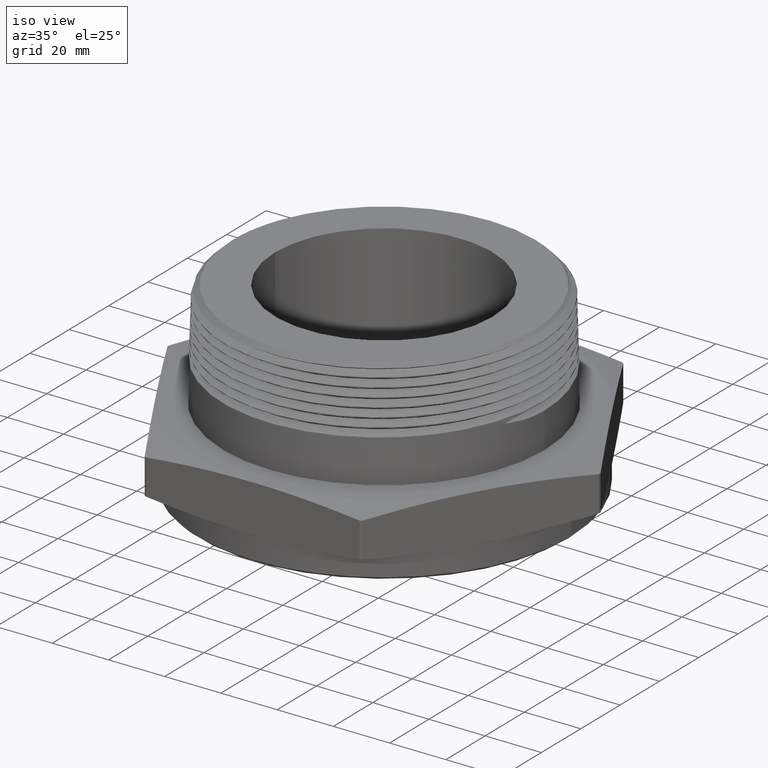
[diagram: clean part render]
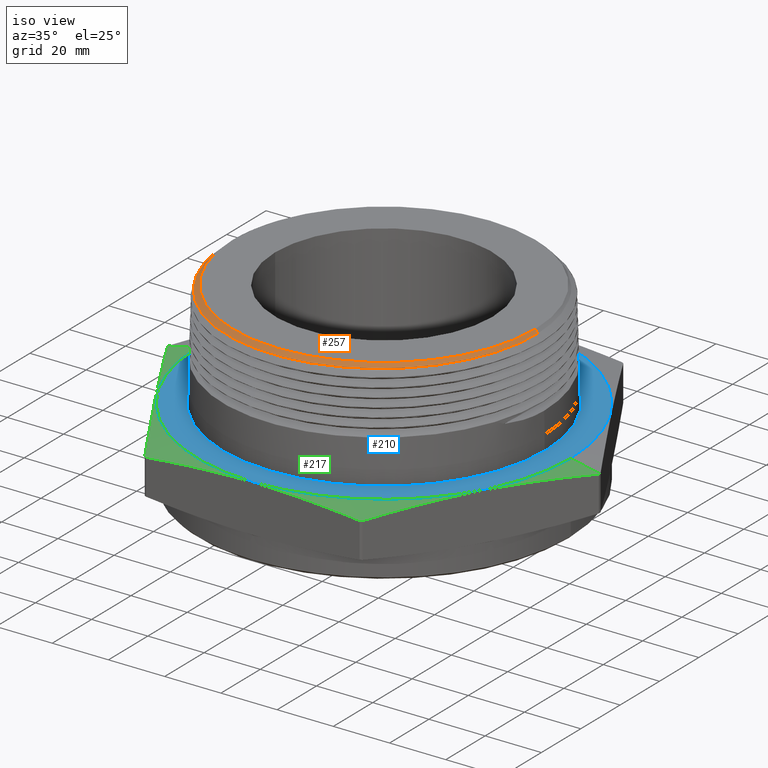
[diagram: same view with three faces highlighted in distinct colors, each labeled with its STEP entity id]
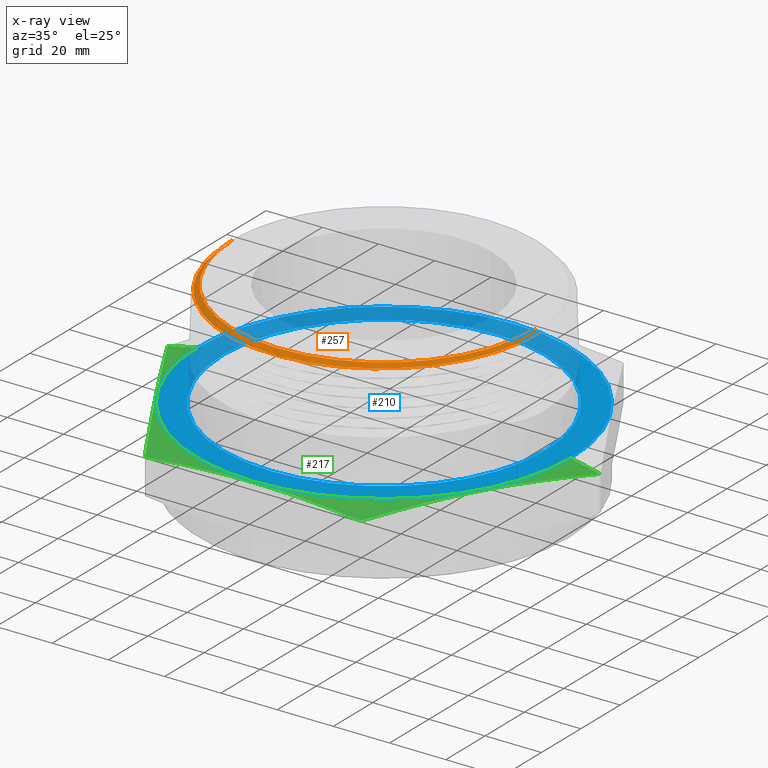
[diagram: x-ray of the same camera — body ghosted, the three highlighted faces saturated]
A machine part, iso view with three faces highlighted in distinct colors.
The next image is the same camera in x-ray (body ghosted, the three faces saturated) — at least one of them is partly hidden behind the body in this view.
Their STEP definitions:

[orange] entity #257 — the highlighted conical surface has half-angle 45 deg.
#121 = FACE_OUTER_BOUND ( 'NONE', #6496, .T. ) ;
#127 = CONICAL_SURFACE ( 'NONE', #6254, 2.365952142250428800, 0.7853981633974532800 ) ;
#257 = ADVANCED_FACE ( 'NONE', ( #121 ), #127, .T. ) ;
#384 = CARTESIAN_POINT ( 'NONE',  ( 2.158410005699266800, -0.07103399825055706200, 2.128779994300698400 ) ) ;
#385 = CARTESIAN_POINT ( 'NONE',  ( 2.157988691224699700, -1.083345630056351400E-012, 2.129201308775299700 ) ) ;
#452 = CARTESIAN_POINT ( 'NONE',  ( -2.123770115113994700, -0.1147659623215417400, 2.163419884886004700 ) ) ;
#453 = CARTESIAN_POINT ( 'NONE',  ( -2.365952142250428800, 0.0000000000000000000, 1.921237857749573000 ) ) ;
#454 = CARTESIAN_POINT ( 'NONE',  ( -2.090551265721161100, -0.3442657029160020000, 2.168482028426059700 ) ) ;
#455 = CARTESIAN_POINT ( 'NONE',  ( 2.155331088833250400, -0.1422931225138161200, 2.128360698266322800 ) ) ;
#456 = CARTESIAN_POINT ( 'NONE',  ( 2.145302996054730300, -0.2495296726293667100, 2.127722210912041500 ) ) ;
#457 = CARTESIAN_POINT ( 'NONE',  ( 2.141059379698197600, -0.2852498387821115200, 2.127508468492275800 ) ) ;
#458 = CARTESIAN_POINT ( 'NONE',  ( 2.130864202773298500, -0.3560306328158861500, 2.127083141119943100 ) ) ;
#459 = CARTESIAN_POINT ( 'NONE',  ( 2.124904984253900500, -0.3911802875291775000, 2.126871036496598600 ) ) ;
#460 = CARTESIAN_POINT ( 'NONE',  ( 2.090863008216183000, -0.5657422755863469300, 2.125817872083261700 ) ) ;
#461 = CARTESIAN_POINT ( 'NONE',  ( 2.050182573831986300, -0.7016347534248080800, 2.124981313803183000 ) ) ;
#462 = CARTESIAN_POINT ( 'NONE',  ( 1.982352449784978900, -0.8667560695433042000, 2.123925632233866000 ) ) ;
#463 = CARTESIAN_POINT ( 'NONE',  ( 1.967928932342085900, -0.8995407448648865500, 2.123714791984807200 ) ) ;
#464 = CARTESIAN_POINT ( 'NONE',  ( 1.937332665192826700, -0.9646213335205686700, 2.123290900230931000 ) ) ;
#465 = CARTESIAN_POINT ( 'NONE',  ( 1.921275626372229900, -0.9966693577098307800, 2.123079453047134200 ) ) ;
#466 = CARTESIAN_POINT ( 'NONE',  ( 1.870936057429065400, -1.091246122713398500, 2.122445602918251700 ) ) ;
#467 = CARTESIAN_POINT ( 'NONE',  ( 1.834465169501656700, -1.152266467034364500, 2.122022633242043500 ) ) ;
#468 = CARTESIAN_POINT ( 'NONE',  ( 1.755814375672600600, -1.270324616974911800, 2.121184918930704800 ) ) ;
#469 = CARTESIAN_POINT ( 'NONE',  ( 1.713635130469317400, -1.327362876043925100, 2.120769145365003700 ) ) ;
#470 = CARTESIAN_POINT ( 'NONE',  ( 1.646059768117905000, -1.409916014414202200, 2.120138693155186400 ) ) ;
#471 = CARTESIAN_POINT ( 'NONE',  ( 1.622815462701444600, -1.436932018760046700, 2.119927598019315500 ) ) ;
#472 = CARTESIAN_POINT ( 'NONE',  ( 1.574866285158989600, -1.489945128534545100, 2.119503913710599100 ) ) ;
#473 = CARTESIAN_POINT ( 'NONE',  ( 1.550110700218499700, -1.515992517149452600, 2.119290935042864800 ) ) ;
#474 = CARTESIAN_POINT ( 'NONE',  ( 1.423175544001725700, -1.643043949773524100, 2.118231765352802700 ) ) ;
#475 = CARTESIAN_POINT ( 'NONE',  ( 1.313246604068322600, -1.733069224013571900, 2.117395822058739000 ) ) ;
#476 = CARTESIAN_POINT ( 'NONE',  ( 1.136248725666382200, -1.851330086078559100, 2.116141968915687100 ) ) ;
#477 = CARTESIAN_POINT ( 'NONE',  ( 1.075216023926326600, -1.887932043361875800, 2.115725778294430100 ) ) ;
#478 = CARTESIAN_POINT ( 'NONE',  ( 0.9805456914266392800, -1.938508731901822200, 2.115092868526207100 ) ) ;
#479 = CARTESIAN_POINT ( 'NONE',  ( 0.9483757626806761400, -1.954686865022142300, 2.114880047649220000 ) ) ;
#480 = CARTESIAN_POINT ( 'NONE',  ( 0.8834985514088584700, -1.985318894920357100, 2.114455776395709000 ) ) ;
#481 = CARTESIAN_POINT ( 'NONE',  ( 0.8508045123698035900, -1.999773626894547400, 2.114244452451228300 ) ) ;
#482 = CARTESIAN_POINT ( 'NONE',  ( 0.6860800666902657800, -2.067818230949733000, 2.113196048195703700 ) ) ;
#483 = CARTESIAN_POINT ( 'NONE',  ( 0.5503285710658181200, -2.108860995126051300, 2.112363284461472800 ) ) ;
#484 = CARTESIAN_POINT ( 'NONE',  ( 0.3756938088492684500, -2.143488896235536100, 2.111317146545436800 ) ) ;
#485 = CARTESIAN_POINT ( 'NONE',  ( 0.3405171883566446800, -2.149572623581209800, 2.111108240777998200 ) ) ;
#486 = CARTESIAN_POINT ( 'NONE',  ( 0.2696566243259607100, -2.160029386419501500, 2.110688438217587200 ) ) ;
#487 = CARTESIAN_POINT ( 'NONE',  ( 0.2338872099814332300, -2.164407547262179300, 2.110477033038469200 ) ) ;
#488 = CARTESIAN_POINT ( 'NONE',  ( 0.1268960001137817200, -2.174825556757361800, 2.109844568340107700 ) ) ;
#489 = CARTESIAN_POINT ( 'NONE',  ( 0.05574086578404421900, -2.178210383764793700, 2.109423145974485900 ) ) ;
#490 = CARTESIAN_POINT ( 'NONE',  ( -0.1572214551619965100, -2.177969531087013500, 2.108173325892419100 ) ) ;
#491 = CARTESIAN_POINT ( 'NONE',  ( -0.2985311274584993600, -2.164065736030630100, 2.107341443190347400 ) ) ;
#492 = CARTESIAN_POINT ( 'NONE',  ( -0.4743120296745360100, -2.128998665574605400, 2.106290617020289100 ) ) ;
#493 = CARTESIAN_POINT ( 'NONE',  ( -0.5094588886384703300, -2.121078195368110800, 2.106080272960653600 ) ) ;
#494 = CARTESIAN_POINT ( 'NONE',  ( -0.5788937782174001800, -2.103622934178169600, 2.105661630492499500 ) ) ;
#495 = CARTESIAN_POINT ( 'NONE',  ( -0.6132773621054270500, -2.094071470364546400, 2.105452765304939100 ) ) ;
#496 = CARTESIAN_POINT ( 'NONE',  ( -0.7154438932827360500, -2.062988447108906200, 2.104825924302070800 ) ) ;
#497 = CARTESIAN_POINT ( 'NONE',  ( -0.7822451641129771800, -2.039034543540335900, 2.104407058110546300 ) ) ;
#498 = CARTESIAN_POINT ( 'NONE',  ( -0.9132560371715443500, -1.984731492225040500, 2.103576551943132000 ) ) ;
#499 = CARTESIAN_POINT ( 'NONE',  ( -0.9774661451556936300, -1.954383613032506700, 2.103163600699642800 ) ) ;
#500 = CARTESIAN_POINT ( 'NONE',  ( -1.071809841124561800, -1.903997177546805900, 2.102536578311791100 ) ) ;
#501 = CARTESIAN_POINT ( 'NONE',  ( -1.102928515121977000, -1.886389330262417500, 2.102326486163432300 ) ) ;
#502 = CARTESIAN_POINT ( 'NONE',  ( -1.164494439956732300, -1.849516877823186700, 2.101904540079446700 ) ) ;
#503 = CARTESIAN_POINT ( 'NONE',  ( -1.194907176029258400, -1.830265966896049700, 2.101692942769072000 ) ) ;
#504 = CARTESIAN_POINT ( 'NONE',  ( -1.343620809245273300, -1.730931213549554000, 2.100646783584797700 ) ) ;
#505 = CARTESIAN_POINT ( 'NONE',  ( -1.453319022376300800, -1.640927808825173800, 2.099818756625690100 ) ) ;
#506 = CARTESIAN_POINT ( 'NONE',  ( -1.604253836159803500, -1.490456367805222700, 2.098573146687009700 ) ) ;
#507 = CARTESIAN_POINT ( 'NONE',  ( -1.652279322084109900, -1.437701747475326900, 2.098159377525259400 ) ) ;
#508 = CARTESIAN_POINT ( 'NONE',  ( -1.720781882988033300, -1.354552716942155600, 2.097529341334330800 ) ) ;
#509 = CARTESIAN_POINT ( 'NONE',  ( -1.742944440946772900, -1.326257388882511500, 2.097318659415026600 ) ) ;
#510 = CARTESIAN_POINT ( 'NONE',  ( -1.785635517901552800, -1.268919463282668600, 2.096899309335440900 ) ) ;
#511 = CARTESIAN_POINT ( 'NONE',  ( -1.806212732860441600, -1.239818333782116300, 2.096690216174814200 ) ) ;
#512 = CARTESIAN_POINT ( 'NONE',  ( -1.905311167430492800, -1.092182183880566100, 2.095652087833915500 ) ) ;
#513 = CARTESIAN_POINT ( 'NONE',  ( -1.972591908792584500, -0.9673246490074237600, 2.094826958682002500 ) ) ;
#514 = CARTESIAN_POINT ( 'NONE',  ( -2.041546964681548300, -0.8027336214231535200, 2.093785906115009300 ) ) ;
#515 = CARTESIAN_POINT ( 'NONE',  ( -2.054573244862035500, -0.7693852715015032700, 2.093578040989361200 ) ) ;
#516 = CARTESIAN_POINT ( 'NONE',  ( -2.079066734540005300, -0.7018116472949995600, 2.093160240138503000 ) ) ;
#517 = CARTESIAN_POINT ( 'NONE',  ( -2.090464944188297600, -0.6677712421181549700, 2.092951443415284300 ) ) ;
#518 = CARTESIAN_POINT ( 'NONE',  ( -2.122044436649070100, -0.5652209093128913700, 2.092325498139157700 ) ) ;
#519 = CARTESIAN_POINT ( 'NONE',  ( -2.139667390322186800, -0.4961460276175085300, 2.091907212245251600 ) ) ;
#520 = CARTESIAN_POINT ( 'NONE',  ( -2.168137603453309300, -0.3565976459293263600, 2.091077151152277700 ) ) ;
#521 = CARTESIAN_POINT ( 'NONE',  ( -2.178985078286467000, -0.2861241916846868300, 2.090665159543330500 ) ) ;
#522 = CARTESIAN_POINT ( 'NONE',  ( -2.193818548536882900, -0.1437610559410860700, 2.089831263837269100 ) ) ;
#523 = CARTESIAN_POINT ( 'NONE',  ( -2.197781326248941200, -0.07176012101515082100, 2.089408673751059100 ) ) ;
#524 = CARTESIAN_POINT ( 'NONE',  ( -2.198199161816874400, -8.110173731190781100E-016, 2.088990838183126400 ) ) ;
#525 = DIRECTION ( 'NONE',  ( -0.7071067811865510100, 0.0000000000000000000, -0.7071067811865440200 ) ) ;
#526 = CARTESIAN_POINT ( 'NONE',  ( -2.126273115848336100, -2.561107494060246600E-016, 2.160916884151663300 ) ) ;
#527 = CARTESIAN_POINT ( 'NONE',  ( -2.109309430332243700, -0.2304863166956607200, 2.168460994660383000 ) ) ;
#528 = DIRECTION ( 'NONE',  ( -0.7071067811865510100, 0.0000000000000000000, -0.7071067811865440200 ) ) ;
#529 = CARTESIAN_POINT ( 'NONE',  ( -2.112045325650973500, -0.2295219104296485300, 2.165918163142028300 ) ) ;
#530 = CARTESIAN_POINT ( 'NONE',  ( -2.090551265721161100, -0.3442657029160020000, 2.168482028426059700 ) ) ;
#531 = CARTESIAN_POINT ( 'NONE',  ( -2.118766093896505200, -0.1152894655081384100, 2.168423906103494700 ) ) ;
#532 = CARTESIAN_POINT ( 'NONE',  ( -2.118793873181037000, -2.561107494060246600E-016, 2.168396126818962000 ) ) ;
#535 = CARTESIAN_POINT ( 'NONE',  ( -2.365952142250428800, 0.0000000000000000000, 1.921237857749573000 ) ) ;
#536 = CARTESIAN_POINT ( 'NONE',  ( 0.0000000000000000000, 0.0000000000000000000, 2.169999999999999900 ) ) ;
#537 = DIRECTION ( 'NONE',  ( -0.0000000000000000000, -0.0000000000000000000, 1.000000000000000000 ) ) ;
#538 = DIRECTION ( 'NONE',  ( 1.000000000000000000, 0.0000000000000000000, 0.0000000000000000000 ) ) ;
#546 = CARTESIAN_POINT ( 'NONE',  ( 2.365952142250428800, 2.897455717942810700E-016, 1.921237857749573000 ) ) ;
#547 = DIRECTION ( 'NONE',  ( 0.7071067811865510100, 8.659560562354976000E-017, -0.7071067811865440200 ) ) ;
#1810 = DIRECTION ( 'NONE',  ( -1.000000000000000000, 0.0000000000000000000, 0.0000000000000000000 ) ) ;
#1811 = CARTESIAN_POINT ( 'NONE',  ( 0.0000000000000000000, 0.0000000000000000000, 1.921237857749573000 ) ) ;
#1812 = DIRECTION ( 'NONE',  ( 0.0000000000000000000, 0.0000000000000000000, -1.000000000000000000 ) ) ;
#1881 = CARTESIAN_POINT ( 'NONE',  ( -2.126273115848336100, -2.561107494060246600E-016, 2.160916884151663300 ) ) ;
#1884 = CARTESIAN_POINT ( 'NONE',  ( -2.117189999999999500, 0.0000000000000000000, 2.169999999999999900 ) ) ;
#1885 = CARTESIAN_POINT ( 'NONE',  ( 2.117189999999999500, 2.642711384879268900E-016, 2.169999999999999900 ) ) ;
#1886 = CARTESIAN_POINT ( 'NONE',  ( 2.157988691224699700, -1.083345630056351400E-012, 2.129201308775299700 ) ) ;
#1895 = CARTESIAN_POINT ( 'NONE',  ( -2.090551265721161100, -0.3442657029160020000, 2.168482028426059700 ) ) ;
#1896 = CARTESIAN_POINT ( 'NONE',  ( -2.198199161816874400, -8.110173731190781100E-016, 2.088990838183126400 ) ) ;
#1911 = CARTESIAN_POINT ( 'NONE',  ( -2.118793873181037000, -2.561107494060246600E-016, 2.168396126818962000 ) ) ;
#3581 = B_SPLINE_CURVE_WITH_KNOTS ( 'NONE', 3,
 ( #385, #384, #455, #456, #457, #458, #459, #460, #461, #462, #463, #464, #465, #466, #467, #468, #469, #470, #471, #472, #473, #474, #475, #476, #477, #478, #479, #480, #481, #482, #483, #484, #485, #486, #487, #488, #489, #490, #491, #492, #493, #494, #495, #496, #497, #498, #499, #500, #501, #502, #503, #504, #505, #506, #507, #508, #509, #510, #511, #512, #513, #514, #515, #516, #517, #518, #519, #520, #521, #522, #523, #524 ),
 .UNSPECIFIED., .F., .F.,
 ( 4, 2, 2, 2, 2, 2, 2, 2, 2, 2, 2, 2, 2, 2, 2, 2, 2, 2, 2, 2, 2, 2, 2, 2, 2, 2, 2, 2, 2, 2, 2, 2, 2, 2, 2, 4 ),
 ( 0.1673629928502143000, 0.1728369310331981700, 0.1755739001246901000, 0.1783108692161820300, 0.1892587455821497500, 0.1919957146736416800, 0.1947326837651335900, 0.2002066219481174500, 0.2056805601311013100, 0.2084175292225932400, 0.2111544983140851700, 0.2221023746800529200, 0.2275763128630368100, 0.2303132819545287700, 0.2330502510460206700, 0.2439981274119884800, 0.2467350965034804100, 0.2494720655949723400, 0.2549460037779562300, 0.2658938801439240100, 0.2686308492354159700, 0.2713678183269079300, 0.2768417565098917900, 0.2823156946928756500, 0.2850526637843675500, 0.2877896328758595100, 0.2987375092418271800, 0.3042114474248111000, 0.3069484165163030000, 0.3096853856077949100, 0.3206332619737626300, 0.3233702310652545300, 0.3261072001567464400, 0.3315811383397303000, 0.3370550765227141600, 0.3425290147056979700 ),
 .UNSPECIFIED. ) ;
#3582 = B_SPLINE_CURVE_WITH_KNOTS ( 'NONE', 3,
 ( #526, #452, #529, #530 ),
 .UNSPECIFIED., .F., .F.,
 ( 4, 4 ),
 ( 0.1116461931724698900, 0.1205278137887863700 ),
 .UNSPECIFIED. ) ;
#3583 = B_SPLINE_CURVE_WITH_KNOTS ( 'NONE', 3,
 ( #454, #527, #531, #532 ),
 .UNSPECIFIED., .F., .F.,
 ( 4, 4 ),
 ( 0.0000000000000000000, 0.008787003462913988200 ),
 .UNSPECIFIED. ) ;
#6254 = AXIS2_PLACEMENT_3D ( 'NONE', #1811, #1812, #1810 ) ;
#6300 = AXIS2_PLACEMENT_3D ( 'NONE', #536, #537, #538 ) ;
#6349 = VERTEX_POINT ( 'NONE', #1881 ) ;
#6352 = VERTEX_POINT ( 'NONE', #1884 ) ;
#6353 = VERTEX_POINT ( 'NONE', #1885 ) ;
#6354 = VERTEX_POINT ( 'NONE', #1886 ) ;
#6363 = VERTEX_POINT ( 'NONE', #1895 ) ;
#6364 = VERTEX_POINT ( 'NONE', #1896 ) ;
#6379 = VERTEX_POINT ( 'NONE', #1911 ) ;
#6422 = ORIENTED_EDGE ( 'NONE', *, *, #7466, .F. ) ;
#6423 = ORIENTED_EDGE ( 'NONE', *, *, #7459, .F. ) ;
#6424 = ORIENTED_EDGE ( 'NONE', *, *, #7460, .T. ) ;
#6425 = ORIENTED_EDGE ( 'NONE', *, *, #7458, .F. ) ;
#6426 = ORIENTED_EDGE ( 'NONE', *, *, #7457, .F. ) ;
#6427 = ORIENTED_EDGE ( 'NONE', *, *, #7456, .T. ) ;
#6428 = ORIENTED_EDGE ( 'NONE', *, *, #7455, .F. ) ;
#6496 = EDGE_LOOP ( 'NONE', ( #6422, #6423, #6424, #6425, #6426, #6427, #6428 ) ) ;
#7302 = LINE ( 'NONE', #535, #7312 ) ;
#7306 = LINE ( 'NONE', #453, #7309 ) ;
#7309 = VECTOR ( 'NONE', #525, 39.37007874015748100 ) ;
#7310 = CIRCLE ( 'NONE', #6300, 2.117189999999999500 ) ;
#7312 = VECTOR ( 'NONE', #528, 39.37007874015748100 ) ;
#7317 = LINE ( 'NONE', #546, #7319 ) ;
#7319 = VECTOR ( 'NONE', #547, 39.37007874015748100 ) ;
#7455 = EDGE_CURVE ( 'NONE', #6354, #6364, #3581, .T. ) ;
#7456 = EDGE_CURVE ( 'NONE', #6349, #6364, #7306, .T. ) ;
#7457 = EDGE_CURVE ( 'NONE', #6349, #6363, #3582, .T. ) ;
#7458 = EDGE_CURVE ( 'NONE', #6363, #6379, #3583, .T. ) ;
#7459 = EDGE_CURVE ( 'NONE', #6352, #6353, #7310, .T. ) ;
#7460 = EDGE_CURVE ( 'NONE', #6352, #6379, #7302, .T. ) ;
#7466 = EDGE_CURVE ( 'NONE', #6353, #6354, #7317, .T. ) ;

[blue] entity #210 — the highlighted planar face has unit normal (-0, 0, 1).
#10 = CIRCLE ( 'NONE', #6281, 2.615000000000000200 ) ;
#46 = CIRCLE ( 'NONE', #6293, 2.260000000000000200 ) ;
#74 = ORIENTED_EDGE ( 'NONE', *, *, #7418, .F. ) ;
#75 = ORIENTED_EDGE ( 'NONE', *, *, #7514, .F. ) ;
#76 = ORIENTED_EDGE ( 'NONE', *, *, #7437, .T. ) ;
#77 = ORIENTED_EDGE ( 'NONE', *, *, #7515, .T. ) ;
#185 = FACE_BOUND ( 'NONE', #6522, .T. ) ;
#186 = FACE_OUTER_BOUND ( 'NONE', #6518, .T. ) ;
#210 = ADVANCED_FACE ( 'NONE', ( #186, #185 ), #3507, .T. ) ;
#1471 = CARTESIAN_POINT ( 'NONE',  ( 8.205133554287250800E-017, 0.0000000000000000000, 0.6699999999999998200 ) ) ;
#1472 = DIRECTION ( 'NONE',  ( -1.224646799147351200E-016, -0.0000000000000000000, -1.000000000000000000 ) ) ;
#1473 = DIRECTION ( 'NONE',  ( -1.000000000000000000, 0.0000000000000000000, 1.044683745187098700E-016 ) ) ;
#1543 = CARTESIAN_POINT ( 'NONE',  ( 0.0000000000000000000, 0.0000000000000000000, 0.6700000000000000400 ) ) ;
#1544 = DIRECTION ( 'NONE',  ( 0.0000000000000000000, -0.0000000000000000000, -1.000000000000000000 ) ) ;
#1545 = DIRECTION ( 'NONE',  ( 1.000000000000000000, 0.0000000000000000000, 0.0000000000000000000 ) ) ;
#1878 = CARTESIAN_POINT ( 'NONE',  ( -2.615000000000000200, 0.0000000000000000000, 0.6700000000000000400 ) ) ;
#1891 = CARTESIAN_POINT ( 'NONE',  ( 2.615000000000000200, 3.202451379770328800E-016, 0.6699999999999996000 ) ) ;
#1897 = CARTESIAN_POINT ( 'NONE',  ( -2.260000000000000200, 2.767701766073018000E-016, 0.6700000000000000400 ) ) ;
#1905 = CARTESIAN_POINT ( 'NONE',  ( 2.260000000000000200, 0.0000000000000000000, 0.6700000000000000400 ) ) ;
#2442 = CARTESIAN_POINT ( 'NONE',  ( 8.205133554287250800E-017, 0.0000000000000000000, 0.6699999999999998200 ) ) ;
#2443 = DIRECTION ( 'NONE',  ( -1.224646799147351200E-016, -0.0000000000000000000, -1.000000000000000000 ) ) ;
#2444 = DIRECTION ( 'NONE',  ( -1.000000000000000000, 0.0000000000000000000, 1.044683745187098700E-016 ) ) ;
#2447 = CARTESIAN_POINT ( 'NONE',  ( 0.0000000000000000000, 0.0000000000000000000, 0.6700000000000000400 ) ) ;
#2448 = DIRECTION ( 'NONE',  ( 0.0000000000000000000, -0.0000000000000000000, -1.000000000000000000 ) ) ;
#2449 = DIRECTION ( 'NONE',  ( 1.000000000000000000, 0.0000000000000000000, 0.0000000000000000000 ) ) ;
#3507 = PLANE ( 'NONE',  #7557 ) ;
#3509 = CARTESIAN_POINT ( 'NONE',  ( -1.515544456622766500, -2.625000000000000000, 0.6700000000000000400 ) ) ;
#3511 = DIRECTION ( 'NONE',  ( -0.0000000000000000000, 0.0000000000000000000, 1.000000000000000000 ) ) ;
#3512 = DIRECTION ( 'NONE',  ( 1.000000000000000000, 0.0000000000000000000, 0.0000000000000000000 ) ) ;
#6281 = AXIS2_PLACEMENT_3D ( 'NONE', #1471, #1472, #1473 ) ;
#6293 = AXIS2_PLACEMENT_3D ( 'NONE', #1543, #1544, #1545 ) ;
#6308 = AXIS2_PLACEMENT_3D ( 'NONE', #2442, #2443, #2444 ) ;
#6309 = AXIS2_PLACEMENT_3D ( 'NONE', #2447, #2448, #2449 ) ;
#6346 = VERTEX_POINT ( 'NONE', #1878 ) ;
#6359 = VERTEX_POINT ( 'NONE', #1891 ) ;
#6365 = VERTEX_POINT ( 'NONE', #1897 ) ;
#6373 = VERTEX_POINT ( 'NONE', #1905 ) ;
#6518 = EDGE_LOOP ( 'NONE', ( #74, #75 ) ) ;
#6522 = EDGE_LOOP ( 'NONE', ( #76, #77 ) ) ;
#7351 = CIRCLE ( 'NONE', #6308, 2.615000000000000200 ) ;
#7352 = CIRCLE ( 'NONE', #6309, 2.260000000000000200 ) ;
#7418 = EDGE_CURVE ( 'NONE', #6346, #6359, #10, .T. ) ;
#7437 = EDGE_CURVE ( 'NONE', #6373, #6365, #46, .T. ) ;
#7514 = EDGE_CURVE ( 'NONE', #6359, #6346, #7351, .T. ) ;
#7515 = EDGE_CURVE ( 'NONE', #6365, #6373, #7352, .T. ) ;
#7557 = AXIS2_PLACEMENT_3D ( 'NONE', #3509, #3511, #3512 ) ;

[green] entity #217 — the highlighted conical surface has half-angle 78 deg.
#9 = LINE ( 'NONE', #1466, #25 ) ;
#25 = VECTOR ( 'NONE', #1454, 39.37007874015748100 ) ;
#139 = VERTEX_POINT ( 'NONE', #3213 ) ;
#153 = VERTEX_POINT ( 'NONE', #3499 ) ;
#155 = VERTEX_POINT ( 'NONE', #3501 ) ;
#199 = FACE_OUTER_BOUND ( 'NONE', #6529, .T. ) ;
#206 = CONICAL_SURFACE ( 'NONE', #7556, 2.615000000000000200, 1.361356816555583600 ) ;
#217 = ADVANCED_FACE ( 'NONE', ( #199 ), #206, .T. ) ;
#543 = CARTESIAN_POINT ( 'NONE',  ( 7.148056852819461200E-017, 0.0000000000000000000, 0.5836831368682160500 ) ) ;
#544 = DIRECTION ( 'NONE',  ( -1.224646799147351200E-016, -0.0000000000000000000, -1.000000000000000000 ) ) ;
#545 = DIRECTION ( 'NONE',  ( -1.000000000000000000, 0.0000000000000000000, 1.130324227502401800E-016 ) ) ;
#665 = CARTESIAN_POINT ( 'NONE',  ( -2.615000000000000200, 0.0000000000000000000, 0.6700000000000000400 ) ) ;
#686 = DIRECTION ( 'NONE',  ( -0.9781476007338069100, 0.0000000000000000000, -0.2079116908177528500 ) ) ;
#1454 = DIRECTION ( 'NONE',  ( 0.9781476007338069100, 1.197885328332319900E-016, -0.2079116908177530700 ) ) ;
#1466 = CARTESIAN_POINT ( 'NONE',  ( 2.615000000000000200, 3.202451379770328800E-016, 0.6699999999999996000 ) ) ;
#1878 = CARTESIAN_POINT ( 'NONE',  ( -2.615000000000000200, 0.0000000000000000000, 0.6700000000000000400 ) ) ;
#1891 = CARTESIAN_POINT ( 'NONE',  ( 2.615000000000000200, 3.202451379770328800E-016, 0.6699999999999996000 ) ) ;
#1908 = CARTESIAN_POINT ( 'NONE',  ( -3.021038762603234700, -0.01740737153618787700, 0.5836831368682163800 ) ) ;
#1912 = CARTESIAN_POINT ( 'NONE',  ( 3.021088913245534100, 3.699766867545698800E-016, 0.5836831368682157100 ) ) ;
#1914 = CARTESIAN_POINT ( 'NONE',  ( -3.021088913245534100, 0.0000000000000000000, 0.5836831368682163800 ) ) ;
#1925 = CARTESIAN_POINT ( 'NONE',  ( -1.525594607265068100, -2.607592628463814200, 0.5836831368682162700 ) ) ;
#1927 = CARTESIAN_POINT ( 'NONE',  ( 3.021038762603234700, -0.01740737153618432400, 0.5836831368682157100 ) ) ;
#2442 = CARTESIAN_POINT ( 'NONE',  ( 8.205133554287250800E-017, 0.0000000000000000000, 0.6699999999999998200 ) ) ;
#2443 = DIRECTION ( 'NONE',  ( -1.224646799147351200E-016, -0.0000000000000000000, -1.000000000000000000 ) ) ;
#2444 = DIRECTION ( 'NONE',  ( -1.000000000000000000, 0.0000000000000000000, 1.044683745187098700E-016 ) ) ;
#2457 = CARTESIAN_POINT ( 'NONE',  ( 7.148056852819461200E-017, 0.0000000000000000000, 0.5836831368682160500 ) ) ;
#2458 = DIRECTION ( 'NONE',  ( -1.224646799147351200E-016, -0.0000000000000000000, -1.000000000000000000 ) ) ;
#2459 = DIRECTION ( 'NONE',  ( -1.000000000000000000, 0.0000000000000000000, 1.130324227502401800E-016 ) ) ;
#2469 = CARTESIAN_POINT ( 'NONE',  ( 7.148056852819461200E-017, 0.0000000000000000000, 0.5836831368682160500 ) ) ;
#2470 = DIRECTION ( 'NONE',  ( -1.224646799147351200E-016, -0.0000000000000000000, -1.000000000000000000 ) ) ;
#2471 = DIRECTION ( 'NONE',  ( -1.000000000000000000, 0.0000000000000000000, 1.130324227502401800E-016 ) ) ;
#2476 = CARTESIAN_POINT ( 'NONE',  ( 7.148056852819461200E-017, 0.0000000000000000000, 0.5836831368682160500 ) ) ;
#2477 = DIRECTION ( 'NONE',  ( -1.224646799147351200E-016, -0.0000000000000000000, -1.000000000000000000 ) ) ;
#2478 = DIRECTION ( 'NONE',  ( -1.000000000000000000, 0.0000000000000000000, 1.130324227502401800E-016 ) ) ;
#2479 = CARTESIAN_POINT ( 'NONE',  ( -1.525594607265068100, -2.607592628463814200, 0.5836831368682162700 ) ) ;
#2480 = CARTESIAN_POINT ( 'NONE',  ( -1.650214953543248400, -2.391743857053179000, 0.6099072106565094400 ) ) ;
#2490 = CARTESIAN_POINT ( 'NONE',  ( 1.246737935579690600, -2.624999999999999600, 0.6098509756414888200 ) ) ;
#2491 = CARTESIAN_POINT ( 'NONE',  ( 1.495444155338167700, -2.624999999999999100, 0.5836831368682159300 ) ) ;
#2492 = CARTESIAN_POINT ( 'NONE',  ( -1.774835299821429200, -2.175895085642543000, 0.6311668422512821700 ) ) ;
#2493 = CARTESIAN_POINT ( 'NONE',  ( -2.024075992377789600, -1.744197542821272200, 0.6601932896857987100 ) ) ;
#2494 = CARTESIAN_POINT ( 'NONE',  ( -2.273316684934150600, -1.312500000000001300, 0.6755555790808011100 ) ) ;
#2495 = CARTESIAN_POINT ( 'NONE',  ( -2.522557377490511700, -0.8808024571787302900, 0.6601932896857988200 ) ) ;
#2496 = CARTESIAN_POINT ( 'NONE',  ( -2.771798070046873200, -0.4491049143574591400, 0.6311668422512822800 ) ) ;
#2497 = CARTESIAN_POINT ( 'NONE',  ( -2.896418416325054100, -0.2332561429468242000, 0.6099072106565098800 ) ) ;
#2498 = CARTESIAN_POINT ( 'NONE',  ( -3.021038762603234700, -0.01740737153618787700, 0.5836831368682163800 ) ) ;
#2499 = CARTESIAN_POINT ( 'NONE',  ( 2.896418416325054100, -0.2332561429468199800, 0.6099072106565088800 ) ) ;
#2500 = CARTESIAN_POINT ( 'NONE',  ( 3.021038762603234700, -0.01740737153618432400, 0.5836831368682157100 ) ) ;
#2501 = CARTESIAN_POINT ( 'NONE',  ( 0.9979211737875096600, -2.624999999999999600, 0.6310888955953113400 ) ) ;
#2502 = CARTESIAN_POINT ( 'NONE',  ( 0.4999863554158675000, -2.625000000000000000, 0.6601276854300962600 ) ) ;
#2503 = CARTESIAN_POINT ( 'NONE',  ( 0.2508663705636963700, -2.624999999999999600, 0.6678425588118422900 ) ) ;
#2504 = CARTESIAN_POINT ( 'NONE',  ( -0.2477181505718189200, -2.624999999999999100, 0.6679061093157715500 ) ) ;
#2505 = CARTESIAN_POINT ( 'NONE',  ( -0.4971827421629466700, -2.625000000000000000, 0.6602523198388604600 ) ) ;
#2506 = CARTESIAN_POINT ( 'NONE',  ( -0.9964197833014738500, -2.625000000000000400, 0.6312149886677038700 ) ) ;
#2507 = CARTESIAN_POINT ( 'NONE',  ( -1.246409596384159700, -2.625000000000000400, 0.6098855221322845300 ) ) ;
#2508 = CARTESIAN_POINT ( 'NONE',  ( -1.495444155338166800, -2.624999999999999600, 0.5836831368682162700 ) ) ;
#2511 = CARTESIAN_POINT ( 'NONE',  ( 2.771798070046873600, -0.4491049143574559200, 0.6311668422512816100 ) ) ;
#2512 = CARTESIAN_POINT ( 'NONE',  ( 2.522557377490511700, -0.8808024571787272900, 0.6601932896857983800 ) ) ;
#2513 = CARTESIAN_POINT ( 'NONE',  ( 2.273316684934152000, -1.312500000000000000, 0.6755555790808008800 ) ) ;
#2514 = CARTESIAN_POINT ( 'NONE',  ( 2.024075992377788700, -1.744197542821271300, 0.6601932896857984900 ) ) ;
#2515 = CARTESIAN_POINT ( 'NONE',  ( 1.774835299821428700, -2.175895085642543000, 0.6311668422512817200 ) ) ;
#2516 = CARTESIAN_POINT ( 'NONE',  ( 1.650214953543247300, -2.391743857053178200, 0.6099072106565088800 ) ) ;
#2517 = CARTESIAN_POINT ( 'NONE',  ( 1.525594607265067500, -2.607592628463814700, 0.5836831368682159300 ) ) ;
#3213 = CARTESIAN_POINT ( 'NONE',  ( 1.495444155338167700, -2.624999999999999100, 0.5836831368682159300 ) ) ;
#3499 = CARTESIAN_POINT ( 'NONE',  ( -1.495444155338166800, -2.624999999999999600, 0.5836831368682162700 ) ) ;
#3501 = CARTESIAN_POINT ( 'NONE',  ( 1.525594607265067500, -2.607592628463814700, 0.5836831368682159300 ) ) ;
#3529 = DIRECTION ( 'NONE',  ( -1.000000000000000000, 0.0000000000000000000, 1.044683745187098700E-016 ) ) ;
#3530 = CARTESIAN_POINT ( 'NONE',  ( 8.205133554287250800E-017, 0.0000000000000000000, 0.6699999999999998200 ) ) ;
#3531 = DIRECTION ( 'NONE',  ( -1.224646799147351200E-016, -0.0000000000000000000, -1.000000000000000000 ) ) ;
#5520 = B_SPLINE_CURVE_WITH_KNOTS ( 'NONE', 3,
 ( #2479, #2480, #2492, #2493, #2494, #2495, #2496, #2497, #2498 ),
 .UNSPECIFIED., .F., .F.,
 ( 4, 2, 1, 2, 4 ),
 ( 1.900818206095866600E-006, 0.01899404159100079000, 0.03798618236379548700, 0.05697832313659018100, 0.07597046390938488900 ),
 .UNSPECIFIED. ) ;
#5521 = B_SPLINE_CURVE_WITH_KNOTS ( 'NONE', 3,
 ( #2491, #2490, #2501, #2502, #2503, #2504, #2505, #2506, #2507, #2508 ),
 .UNSPECIFIED., .F., .F.,
 ( 4, 2, 2, 2, 4 ),
 ( 0.1460079496805055400, 0.1650573808308880000, 0.1841068119812704600, 0.2031562431316529200, 0.2222056742820353900 ),
 .UNSPECIFIED. ) ;
#5522 = B_SPLINE_CURVE_WITH_KNOTS ( 'NONE', 3,
 ( #2500, #2499, #2511, #2512, #2513, #2514, #2515, #2516, #2517 ),
 .UNSPECIFIED., .F., .F.,
 ( 4, 2, 1, 2, 4 ),
 ( 1.900818206055693700E-006, 0.01899404159100078600, 0.03798618236379552200, 0.05697832313659024300, 0.07597046390938495800 ),
 .UNSPECIFIED. ) ;
#6301 = AXIS2_PLACEMENT_3D ( 'NONE', #543, #544, #545 ) ;
#6308 = AXIS2_PLACEMENT_3D ( 'NONE', #2442, #2443, #2444 ) ;
#6311 = AXIS2_PLACEMENT_3D ( 'NONE', #2457, #2458, #2459 ) ;
#6313 = AXIS2_PLACEMENT_3D ( 'NONE', #2469, #2470, #2471 ) ;
#6314 = AXIS2_PLACEMENT_3D ( 'NONE', #2476, #2477, #2478 ) ;
#6346 = VERTEX_POINT ( 'NONE', #1878 ) ;
#6359 = VERTEX_POINT ( 'NONE', #1891 ) ;
#6376 = VERTEX_POINT ( 'NONE', #1908 ) ;
#6380 = VERTEX_POINT ( 'NONE', #1912 ) ;
#6382 = VERTEX_POINT ( 'NONE', #1914 ) ;
#6394 = VERTEX_POINT ( 'NONE', #1925 ) ;
#6396 = VERTEX_POINT ( 'NONE', #1927 ) ;
#6529 = EDGE_LOOP ( 'NONE', ( #6570, #6571, #6572, #6573, #6574, #6575, #6576, #6577, #6578, #6579 ) ) ;
#6570 = ORIENTED_EDGE ( 'NONE', *, *, #7417, .F. ) ;
#6571 = ORIENTED_EDGE ( 'NONE', *, *, #7514, .T. ) ;
#6572 = ORIENTED_EDGE ( 'NONE', *, *, #7473, .T. ) ;
#6573 = ORIENTED_EDGE ( 'NONE', *, *, #7462, .F. ) ;
#6574 = ORIENTED_EDGE ( 'NONE', *, *, #7533, .F. ) ;
#6575 = ORIENTED_EDGE ( 'NONE', *, *, #7518, .F. ) ;
#6576 = ORIENTED_EDGE ( 'NONE', *, *, #7534, .F. ) ;
#6577 = ORIENTED_EDGE ( 'NONE', *, *, #7523, .F. ) ;
#6578 = ORIENTED_EDGE ( 'NONE', *, *, #7535, .F. ) ;
#6579 = ORIENTED_EDGE ( 'NONE', *, *, #7526, .F. ) ;
#7313 = CIRCLE ( 'NONE', #6301, 3.021088913245534100 ) ;
#7321 = LINE ( 'NONE', #665, #7329 ) ;
#7329 = VECTOR ( 'NONE', #686, 39.37007874015748100 ) ;
#7343 = CIRCLE ( 'NONE', #6311, 3.021088913245534100 ) ;
#7351 = CIRCLE ( 'NONE', #6308, 2.615000000000000200 ) ;
#7357 = CIRCLE ( 'NONE', #6313, 3.021088913245534100 ) ;
#7368 = CIRCLE ( 'NONE', #6314, 3.021088913245534100 ) ;
#7417 = EDGE_CURVE ( 'NONE', #6359, #6380, #9, .T. ) ;
#7462 = EDGE_CURVE ( 'NONE', #6376, #6382, #7313, .T. ) ;
#7473 = EDGE_CURVE ( 'NONE', #6346, #6382, #7321, .T. ) ;
#7514 = EDGE_CURVE ( 'NONE', #6359, #6346, #7351, .T. ) ;
#7518 = EDGE_CURVE ( 'NONE', #153, #6394, #7343, .T. ) ;
#7523 = EDGE_CURVE ( 'NONE', #155, #139, #7357, .T. ) ;
#7526 = EDGE_CURVE ( 'NONE', #6380, #6396, #7368, .T. ) ;
#7533 = EDGE_CURVE ( 'NONE', #6394, #6376, #5520, .T. ) ;
#7534 = EDGE_CURVE ( 'NONE', #139, #153, #5521, .T. ) ;
#7535 = EDGE_CURVE ( 'NONE', #6396, #155, #5522, .T. ) ;
#7556 = AXIS2_PLACEMENT_3D ( 'NONE', #3530, #3531, #3529 ) ;